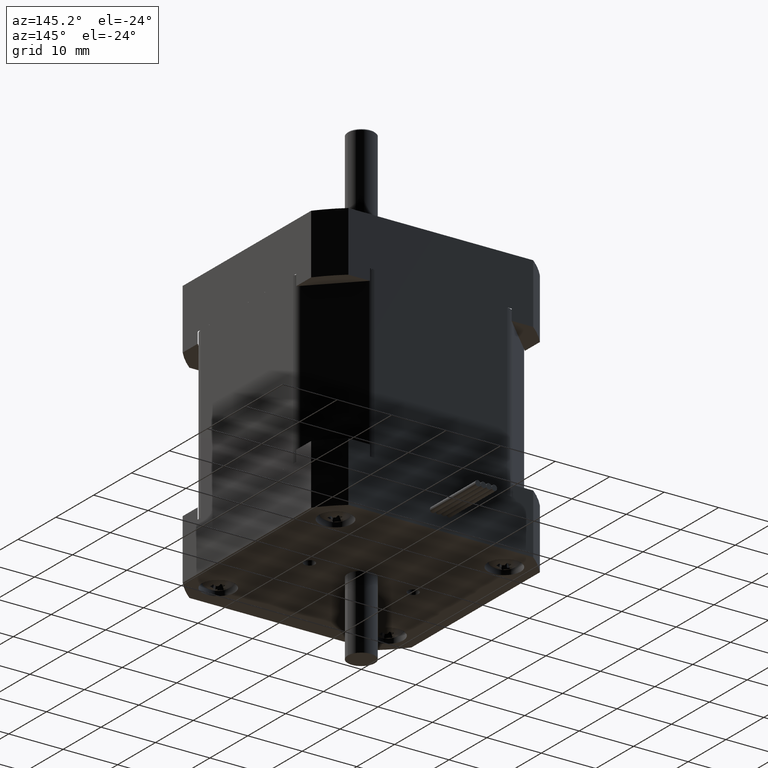
[diagram: clean part render]
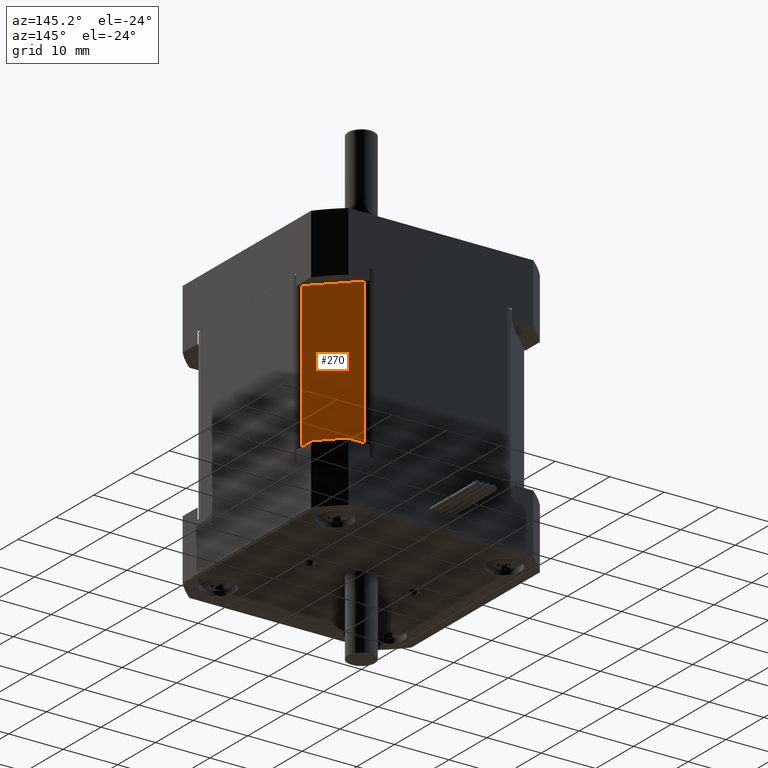
[diagram: same view with one face highlighted and labeled with its STEP entity id]
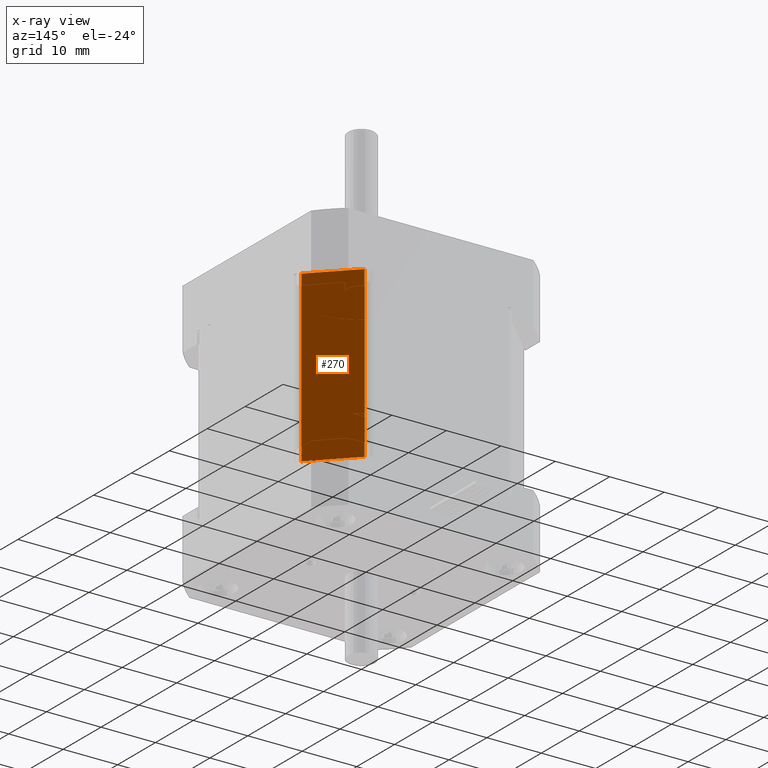
[diagram: x-ray of the same camera — body ghosted, the highlighted face saturated]
A machine part, auxiliary view. The second image highlights one B-rep face of the part: STEP entity #270.
The next image is the same camera in x-ray: the body ghosted, the highlighted face saturated — about 0% of this face is hidden behind the body in this view.
In plain terms, the highlighted planar face has unit normal (0.7071, 0.7071, 0).
Its self-contained STEP definition (entity closure, byte-faithful):
#212=CARTESIAN_POINT('',(13.585786437626886,20.414213562373114,15.250000000000011));
#213=VERTEX_POINT('',#212);
#221=CARTESIAN_POINT('',(13.585786437626886,20.414213562373114,-15.750000000000007));
#222=VERTEX_POINT('',#221);
#223=CARTESIAN_POINT('',(13.585786437626886,20.414213562373114,15.250000000000011));
#224=DIRECTION('',(0.0,0.0,-1.0));
#225=VECTOR('',#224,31.000000000000018);
#226=LINE('',#223,#225);
#227=EDGE_CURVE('',#213,#222,#226,.T.);
#240=CARTESIAN_POINT('',(12.999999999999982,21.000000000000014,0.0));
#241=DIRECTION('',(0.707106781186547,0.707106781186548,0.0));
#242=DIRECTION('',(0.0,0.0,-1.0));
#243=AXIS2_PLACEMENT_3D('',#240,#241,#242);
#244=PLANE('',#243);
#245=CARTESIAN_POINT('',(20.414213562373085,13.585786437626926,15.250000000000007));
#246=VERTEX_POINT('',#245);
#247=CARTESIAN_POINT('',(13.585786437626886,20.414213562373114,15.250000000000011));
#248=DIRECTION('',(0.707106781186548,-0.707106781186547,0.0));
#249=VECTOR('',#248,9.656854249492387);
#250=LINE('',#247,#249);
#251=EDGE_CURVE('',#213,#246,#250,.T.);
#252=ORIENTED_EDGE('',*,*,#251,.T.);
#253=CARTESIAN_POINT('',(20.414213562373085,13.585786437626926,-15.750000000000007));
#254=VERTEX_POINT('',#253);
#255=CARTESIAN_POINT('',(20.414213562373085,13.585786437626926,-15.750000000000007));
#256=DIRECTION('',(0.0,0.0,1.0));
#257=VECTOR('',#256,31.000000000000014);
#258=LINE('',#255,#257);
#259=EDGE_CURVE('',#254,#246,#258,.T.);
#260=ORIENTED_EDGE('',*,*,#259,.F.);
#261=CARTESIAN_POINT('',(20.414213562373085,13.585786437626926,-15.750000000000007));
#262=DIRECTION('',(-0.707106781186548,0.707106781186547,0.0));
#263=VECTOR('',#262,9.656854249492387);
#264=LINE('',#261,#263);
#265=EDGE_CURVE('',#254,#222,#264,.T.);
#266=ORIENTED_EDGE('',*,*,#265,.T.);
#267=ORIENTED_EDGE('',*,*,#227,.F.);
#268=EDGE_LOOP('',(#252,#260,#266,#267));
#269=FACE_OUTER_BOUND('',#268,.T.);
#270=ADVANCED_FACE('',(#269),#244,.T.);